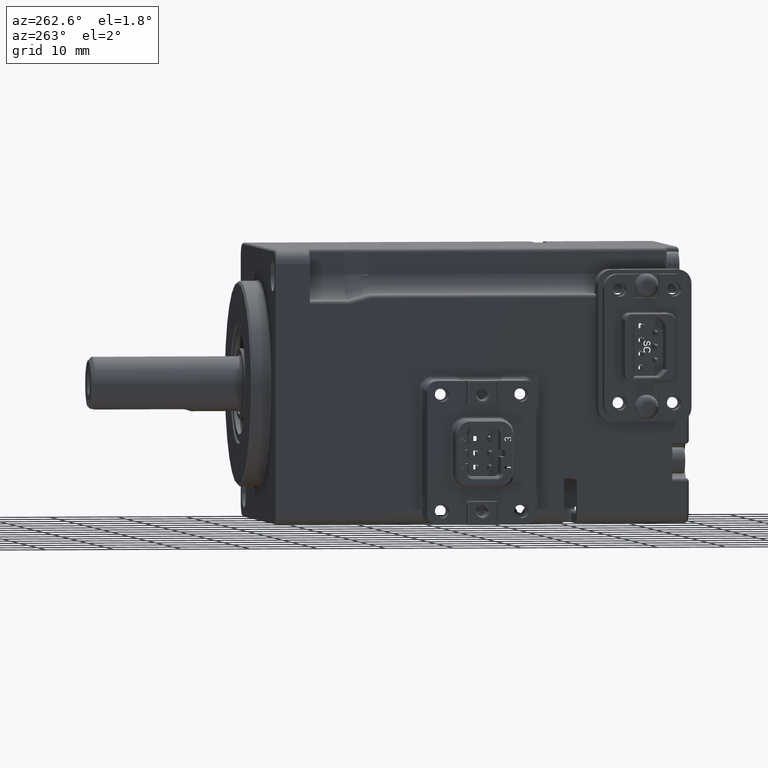
[diagram: clean part render]
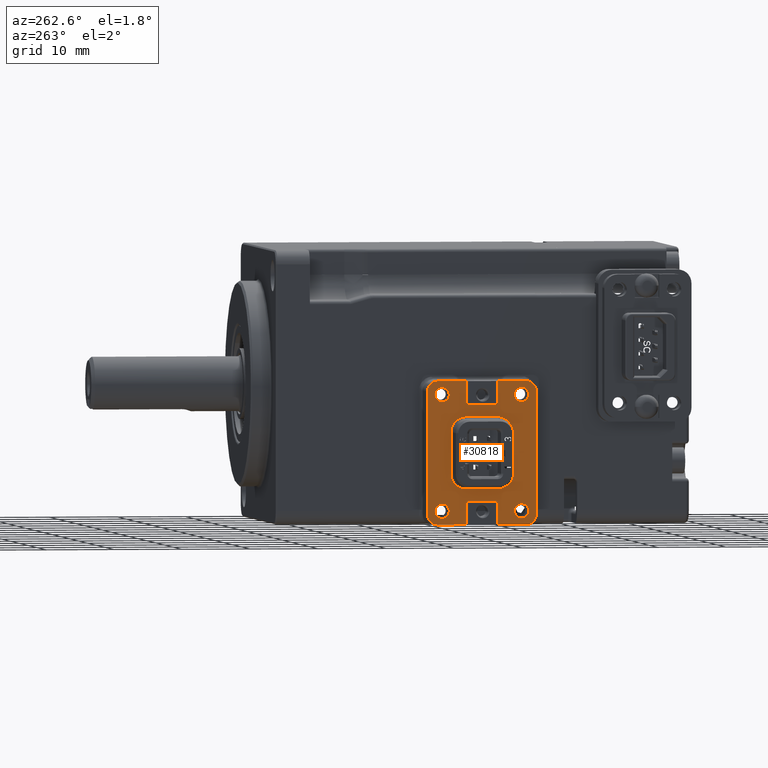
[diagram: same view with one face highlighted and labeled with its STEP entity id]
A machine part, auxiliary view. The second image highlights one B-rep face of the part: STEP entity #30818.
In plain terms, the highlighted planar face has unit normal (-1, -0, 0).
Its self-contained STEP definition (entity closure, byte-faithful):
#83 = CARTESIAN_POINT ( 'NONE',  ( -25.29999999999998650, 11.93342453578383378, -4.340476382030566960 ) ) ;
#85 = CARTESIAN_POINT ( 'NONE',  ( -25.29999999999998650, 6.849999999431412689, -16.49414379222918114 ) ) ;
#135 = CARTESIAN_POINT ( 'NONE',  ( -25.29999999999998295, 10.75000000042746962, -2.394143792229025181 ) ) ;
#201 = CARTESIAN_POINT ( 'NONE',  ( -25.29999999999998295, 4.250000000001012523, -12.42414379224866572 ) ) ;
#321 = CARTESIAN_POINT ( 'NONE',  ( -25.29999999999998295, 11.04999999996511661, -2.094139428596199615 ) ) ;
#526 = AXIS2_PLACEMENT_3D ( 'NONE', #5203, #13510, #31580 ) ;
#649 = DIRECTION ( 'NONE',  ( 1.186755645631133714E-16, -1.084028700137906438E-14, 1.000000000000000000 ) ) ;
#671 = EDGE_CURVE ( 'NONE', #10536, #20473, #4727, .T. ) ;
#735 = CARTESIAN_POINT ( 'NONE',  ( -25.29999999999998295, 2.300000000001125589, -0.4441437922292970630 ) ) ;
#777 = CIRCLE ( 'NONE', #25261, 1.050000000000118172 ) ;
#802 = CARTESIAN_POINT ( 'NONE',  ( -25.29999999999998650, 6.188414638325144601, -4.184329655675074200 ) ) ;
#881 = VERTEX_POINT ( 'NONE', #15636 ) ;
#924 = CIRCLE ( 'NONE', #18708, 1.500000000000096367 ) ;
#1008 = ORIENTED_EDGE ( 'NONE', *, *, #21073, .T. ) ;
#1032 = EDGE_CURVE ( 'NONE', #32018, #7398, #19358, .T. ) ;
#1054 = DIRECTION ( 'NONE',  ( 0.000000000000000000, -1.073876437509332480E-14, 1.000000000000000000 ) ) ;
#1122 = CARTESIAN_POINT ( 'NONE',  ( -25.29999999999998295, 5.452560541469893884, -14.44847140338645985 ) ) ;
#1217 = CARTESIAN_POINT ( 'NONE',  ( -25.29999999999998650, 10.75000000000077982, -16.79414379222984977 ) ) ;
#1324 = CARTESIAN_POINT ( 'NONE',  ( -25.29999999999997584, 5.943691420244775259, -4.243205090724321060 ) ) ;
#1456 = EDGE_CURVE ( 'NONE', #19972, #22734, #19940, .T. ) ;
#1464 = CARTESIAN_POINT ( 'NONE',  ( -25.29999999999998295, 0.7999999999996048050, -9.444143792228873124 ) ) ;
#1491 = CARTESIAN_POINT ( 'NONE',  ( -25.29999999999998650, 6.403852495596596306, -4.164143792229610952 ) ) ;
#1554 = EDGE_CURVE ( 'NONE', #14692, #8296, #24983, .T. ) ;
#2123 = AXIS2_PLACEMENT_3D ( 'NONE', #20956, #26065, #9883 ) ;
#2179 = VECTOR ( 'NONE', #9693, 1000.000000000000000 ) ;
#2220 = AXIS2_PLACEMENT_3D ( 'NONE', #25276, #14612, #1054 ) ;
#2334 = EDGE_CURVE ( 'NONE', #7067, #10536, #3752, .T. ) ;
#2353 = CARTESIAN_POINT ( 'NONE',  ( -25.29999999999998295, 6.849999998506953958, -2.394143792229066481 ) ) ;
#2402 = VERTEX_POINT ( 'NONE', #10048 ) ;
#2523 = CARTESIAN_POINT ( 'NONE',  ( -25.29999999999998650, 11.86256381169717145, -14.57590385754874873 ) ) ;
#2698 = CARTESIAN_POINT ( 'NONE',  ( -25.29999999999997939, 12.14743945853135365, -4.439816181071113199 ) ) ;
#2710 = CARTESIAN_POINT ( 'NONE',  ( -25.29999999999997939, 4.250000000001078249, -12.57029129663378519 ) ) ;
#2863 = ORIENTED_EDGE ( 'NONE', *, *, #23491, .T. ) ;
#2867 = AXIS2_PLACEMENT_3D ( 'NONE', #1217, #11686, #14404 ) ;
#2887 = CARTESIAN_POINT ( 'NONE',  ( -25.29999999999999005, 4.367330331279489997, -13.15115874384163597 ) ) ;
#2996 = LINE ( 'NONE', #22305, #18928 ) ;
#3158 = ORIENTED_EDGE ( 'NONE', *, *, #7888, .T. ) ;
#3203 = CARTESIAN_POINT ( 'NONE',  ( -25.29999999999998295, 6.850000000000470379, -2.094143792227725953 ) ) ;
#3225 = EDGE_CURVE ( 'NONE', #30821, #17748, #7591, .T. ) ;
#3245 = LINE ( 'NONE', #16617, #14510 ) ;
#3455 = ORIENTED_EDGE ( 'NONE', *, *, #21961, .T. ) ;
#3556 = DIRECTION ( 'NONE',  ( -1.000000000000000000, -6.596682886007179009E-17, 1.186755645631126565E-16 ) ) ;
#3590 = CARTESIAN_POINT ( 'NONE',  ( -25.29999999999998295, 4.465646589456732762, -5.490165061242270106 ) ) ;
#3752 = LINE ( 'NONE', #23070, #2179 ) ;
#3753 = CIRCLE ( 'NONE', #25521, 1.050000000000118172 ) ;
#3818 = EDGE_CURVE ( 'NONE', #24884, #20267, #28186, .T. ) ;
#3921 = CARTESIAN_POINT ( 'NONE',  ( -25.29999999999997229, 4.699403858450686755, -13.82613381615012571 ) ) ;
#3950 = CARTESIAN_POINT ( 'NONE',  ( -25.29999999999998295, 4.303828969189040343, -5.889286095194595561 ) ) ;
#4383 = AXIS2_PLACEMENT_3D ( 'NONE', #24556, #21892, #26828 ) ;
#4411 = VERTEX_POINT ( 'NONE', #33138 ) ;
#4652 = CARTESIAN_POINT ( 'NONE',  ( -25.29999999999998295, 13.15819321537257203, -13.34395715629145229 ) ) ;
#4653 = CARTESIAN_POINT ( 'NONE',  ( -25.29999999999998650, 6.550000000000814282, -16.79414379222988885 ) ) ;
#4664 = DIRECTION ( 'NONE',  ( -1.186755645631133714E-16, 1.084028700137906438E-14, -1.000000000000000000 ) ) ;
#4727 = B_SPLINE_CURVE_WITH_KNOTS ( 'NONE', 3,
 ( #25359, #1491, #802, #1324, #11621, #30371, #11441, #27291, #14019, #19416, #30050, #9336, #30544, #3590, #6569, #32412, #17136, #3950, #17314, #27987 ),
 .UNSPECIFIED., .F., .F.,
 ( 4, 1, 1, 1, 2, 2, 2, 1, 1, 1, 2, 2, 4 ),
 ( 0.000000000000000000, 0.1249999999999978906, 0.1874999999999968359, 0.2187499999999967804, 0.2343749999999968636, 0.2499999999999969469, 0.4999999999999964473, 0.6249999999999964473, 0.6874999999999968914, 0.7187499999999972244, 0.7343749999999971134, 0.7499999999999971134, 1.000000000000000000 ),
 .UNSPECIFIED. ) ;
#4752 = ORIENTED_EDGE ( 'NONE', *, *, #4930, .T. ) ;
#4930 = EDGE_CURVE ( 'NONE', #24751, #25329, #924, .T. ) ;
#4933 = EDGE_LOOP ( 'NONE', ( #26170, #22105, #24589, #14616, #33288, #4752, #5019, #25203, #7331, #22729, #12820, #1008, #14575, #31294, #22715, #3455, #20143, #2863, #15154, #19587 ) ) ;
#5019 = ORIENTED_EDGE ( 'NONE', *, *, #6654, .T. ) ;
#5203 = CARTESIAN_POINT ( 'NONE',  ( -25.29999999999998650, 14.65000000000017621, -17.94414379222774514 ) ) ;
#5295 = VECTOR ( 'NONE', #22844, 1000.000000000000000 ) ;
#5336 = CARTESIAN_POINT ( 'NONE',  ( -25.29999999999999005, 13.21437622997405548, -5.685752232074165136 ) ) ;
#5396 = AXIS2_PLACEMENT_3D ( 'NONE', #9157, #30358, #6549 ) ;
#5468 = CARTESIAN_POINT ( 'NONE',  ( -25.29999999999998650, 0.7999999999997019495, -18.44414379222843081 ) ) ;
#5642 = EDGE_CURVE ( 'NONE', #5688, #32018, #15523, .T. ) ;
#5688 = VERTEX_POINT ( 'NONE', #10523 ) ;
#5737 = EDGE_CURVE ( 'NONE', #20310, #24179, #7156, .T. ) ;
#5841 = CARTESIAN_POINT ( 'NONE',  ( -25.29999999999998295, 14.64999999999999325, -0.9441437922297000185 ) ) ;
#5853 = VERTEX_POINT ( 'NONE', #33048 ) ;
#5860 = CARTESIAN_POINT ( 'NONE',  ( -25.29999999999998295, 8.800000000000624212, -9.444143792228786083 ) ) ;
#5947 = CARTESIAN_POINT ( 'NONE',  ( -25.29999999999998650, 8.800000000000739675, -19.94414379222996558 ) ) ;
#6018 = DIRECTION ( 'NONE',  ( 0.000000000000000000, -1.073876437509332480E-14, 1.000000000000000000 ) ) ;
#6191 = CARTESIAN_POINT ( 'NONE',  ( -25.29999999999998650, 2.950000000001268052, -18.99414379222799099 ) ) ;
#6528 = CARTESIAN_POINT ( 'NONE',  ( -25.29999999999998295, 11.05000000000051408, -9.444143792228761214 ) ) ;
#6536 = CARTESIAN_POINT ( 'NONE',  ( -25.29999999999997939, 5.035779675693608404, -14.16266717536240805 ) ) ;
#6549 = DIRECTION ( 'NONE',  ( 0.000000000000000000, 1.040834085586018308E-14, -1.000000000000000000 ) ) ;
#6569 = CARTESIAN_POINT ( 'NONE',  ( -25.29999999999997939, 4.441806784628724358, -5.544330428150815671 ) ) ;
#6588 = CARTESIAN_POINT ( 'NONE',  ( -25.29999999999998295, 8.800000000000547828, -2.394143792229046053 ) ) ;
#6654 = EDGE_CURVE ( 'NONE', #25329, #33550, #10804, .T. ) ;
#6689 = LINE ( 'NONE', #32706, #5295 ) ;
#6692 = ORIENTED_EDGE ( 'NONE', *, *, #14848, .T. ) ;
#6726 = CARTESIAN_POINT ( 'NONE',  ( -25.29999999999998650, 5.630186635938875028, -14.53233700760086933 ) ) ;
#6782 = ORIENTED_EDGE ( 'NONE', *, *, #2334, .T. ) ;
#6786 = EDGE_CURVE ( 'NONE', #13970, #22191, #26224, .T. ) ;
#6889 = EDGE_CURVE ( 'NONE', #33550, #25353, #3245, .T. ) ;
#6902 = CARTESIAN_POINT ( 'NONE',  ( -25.29999999999998650, 4.404193296622990417, -13.25232624754328192 ) ) ;
#7012 = AXIS2_PLACEMENT_3D ( 'NONE', #31582, #15592, #7841 ) ;
#7067 = VERTEX_POINT ( 'NONE', #25882 ) ;
#7156 = CIRCLE ( 'NONE', #27171, 1.050000000000118172 ) ;
#7171 = CIRCLE ( 'NONE', #2123, 1.500000000000096367 ) ;
#7331 = ORIENTED_EDGE ( 'NONE', *, *, #23421, .T. ) ;
#7398 = VERTEX_POINT ( 'NONE', #5468 ) ;
#7591 = CIRCLE ( 'NONE', #7012, 0.3000000000000710432 ) ;
#7635 = ORIENTED_EDGE ( 'NONE', *, *, #30829, .T. ) ;
#7710 = LINE ( 'NONE', #5947, #7819 ) ;
#7796 = CARTESIAN_POINT ( 'NONE',  ( -25.29999999999998295, 13.07181531732903856, -5.322559933039983981 ) ) ;
#7819 = VECTOR ( 'NONE', #16158, 1000.000000000000000 ) ;
#7841 = DIRECTION ( 'NONE',  ( 0.000000000000000000, 1.156482317317597556E-14, -1.000000000000000000 ) ) ;
#7888 = EDGE_CURVE ( 'NONE', #22734, #31991, #8959, .T. ) ;
#8296 = VERTEX_POINT ( 'NONE', #14448 ) ;
#8344 = ORIENTED_EDGE ( 'NONE', *, *, #671, .T. ) ;
#8461 = FACE_BOUND ( 'NONE', #8884, .T. ) ;
#8796 = FACE_BOUND ( 'NONE', #21367, .T. ) ;
#8857 = EDGE_CURVE ( 'NONE', #7398, #24751, #17285, .T. ) ;
#8884 = EDGE_LOOP ( 'NONE', ( #13043, #7635 ) ) ;
#8959 = B_SPLINE_CURVE_WITH_KNOTS ( 'NONE', 3,
 ( #20940, #10226, #15721, #26388, #23770, #12826, #2523, #13135, #18521, #28659, #12472, #31545, #20775, #9867, #4652, #26547, #29147, #12980, #26234, #15553 ),
 .UNSPECIFIED., .F., .F.,
 ( 4, 1, 1, 1, 2, 2, 2, 1, 1, 1, 2, 2, 4 ),
 ( 0.000000000000000000, 0.1249999999999942824, 0.1874999999999905353, 0.2187499999999896194, 0.2343749999999888978, 0.2499999999999881761, 0.4999999999999902300, 0.6249999999999916733, 0.6874999999999925615, 0.7187499999999926725, 0.7343749999999926725, 0.7499999999999927836, 1.000000000000000000 ),
 .UNSPECIFIED. ) ;
#9098 = ORIENTED_EDGE ( 'NONE', *, *, #28265, .T. ) ;
#9157 = CARTESIAN_POINT ( 'NONE',  ( -25.29999999999998650, 15.30000000000012506, -18.44414379222827449 ) ) ;
#9181 = CARTESIAN_POINT ( 'NONE',  ( -25.29999999999998295, 2.950000000001061107, 0.1058562077702897841 ) ) ;
#9306 = CARTESIAN_POINT ( 'NONE',  ( -25.29999999999998295, 5.975142302985736009, -14.67031482304014567 ) ) ;
#9336 = CARTESIAN_POINT ( 'NONE',  ( -25.29999999999998295, 4.663322340101180963, -5.131483392811251321 ) ) ;
#9446 = CARTESIAN_POINT ( 'NONE',  ( -25.29999999999998650, 11.04999999997420623, -16.79414661272204157 ) ) ;
#9495 = CARTESIAN_POINT ( 'NONE',  ( -25.29999999999998650, 6.549999999991266364, -14.72414379222835912 ) ) ;
#9693 = DIRECTION ( 'NONE',  ( 6.596682886007047122E-17, -1.000000000000000000, -1.084028700137906438E-14 ) ) ;
#9732 = LINE ( 'NONE', #25391, #28832 ) ;
#9850 = VERTEX_POINT ( 'NONE', #10656 ) ;
#9867 = CARTESIAN_POINT ( 'NONE',  ( -25.29999999999999005, 13.13435341054459826, -13.39812252320055386 ) ) ;
#9883 = DIRECTION ( 'NONE',  ( 0.000000000000000000, 1.156482317317797138E-14, -1.000000000000000000 ) ) ;
#9893 = CARTESIAN_POINT ( 'NONE',  ( -25.29999999999998295, 14.64999999999998082, 0.1058562077704181537 ) ) ;
#9939 = ORIENTED_EDGE ( 'NONE', *, *, #1456, .T. ) ;
#10048 = CARTESIAN_POINT ( 'NONE',  ( -25.29999999999998295, 2.950000000001084199, -1.994143792229946088 ) ) ;
#10066 = DIRECTION ( 'NONE',  ( 1.000000000000000000, 6.596682886007179009E-17, -1.186755645631127551E-16 ) ) ;
#10221 = CARTESIAN_POINT ( 'NONE',  ( -25.29999999999998295, 13.27093870150432231, -5.857835212472094710 ) ) ;
#10226 = CARTESIAN_POINT ( 'NONE',  ( -25.29999999999997939, 11.19614750440455886, -14.72414379222796121 ) ) ;
#10490 = B_SPLINE_CURVE_WITH_KNOTS ( 'NONE', 3,
 ( #23595, #34165, #34343, #10221, #10549, #5336, #20936, #12644, #7796, #20771, #21114, #31382, #2698, #13306, #23946, #83, #10709, #21282, #31876, #18167 ),
 .UNSPECIFIED., .F., .F.,
 ( 4, 1, 1, 1, 2, 2, 2, 1, 1, 1, 2, 2, 4 ),
 ( 0.000000000000000000, 0.1249999999999990286, 0.1874999999999986677, 0.2187499999999985290, 0.2343749999999980571, 0.2499999999999976130, 0.4999999999999895639, 0.6249999999999852340, 0.6874999999999839018, 0.7187499999999833467, 0.7343749999999835687, 0.7499999999999837907, 1.000000000000000000 ),
 .UNSPECIFIED. ) ;
#10523 = CARTESIAN_POINT ( 'NONE',  ( -25.29999999999998650, 6.550000000000848921, -19.94414379222999401 ) ) ;
#10536 = VERTEX_POINT ( 'NONE', #10606 ) ;
#10549 = CARTESIAN_POINT ( 'NONE',  ( -25.29999999999998295, 13.23266966872176020, -5.737128840615937975 ) ) ;
#10553 = EDGE_LOOP ( 'NONE', ( #34423, #15075 ) ) ;
#10606 = CARTESIAN_POINT ( 'NONE',  ( -25.29999999999998295, 6.549999999981754861, -4.164143792229229923 ) ) ;
#10656 = CARTESIAN_POINT ( 'NONE',  ( -25.29999999999998295, 11.04999999994807780, 1.055856207772419841 ) ) ;
#10709 = CARTESIAN_POINT ( 'NONE',  ( -25.29999999999997939, 11.91360284043285311, -4.332359320941651326 ) ) ;
#10804 = LINE ( 'NONE', #24564, #21709 ) ;
#10974 = CIRCLE ( 'NONE', #27115, 1.050000000000118172 ) ;
#11098 = DIRECTION ( 'NONE',  ( 1.000000000000000000, 6.596682886007179009E-17, -1.186755645631127551E-16 ) ) ;
#11235 = AXIS2_PLACEMENT_3D ( 'NONE', #5860, #3556, #27068 ) ;
#11264 = CARTESIAN_POINT ( 'NONE',  ( -25.29999999999998295, 10.75000000000061995, -2.094143792227684209 ) ) ;
#11389 = CARTESIAN_POINT ( 'NONE',  ( -25.29999999999998650, 10.75000000000077627, -16.49414379222850613 ) ) ;
#11409 = CARTESIAN_POINT ( 'NONE',  ( -25.29999999999998650, 16.80000000000098126, -18.44414379222825673 ) ) ;
#11410 = FACE_BOUND ( 'NONE', #31012, .T. ) ;
#11441 = CARTESIAN_POINT ( 'NONE',  ( -25.29999999999998295, 5.737436188304059215, -4.312383726907190074 ) ) ;
#11487 = CARTESIAN_POINT ( 'NONE',  ( -25.29999999999998295, 14.65000000000000568, -1.994143792229817747 ) ) ;
#11592 = VECTOR ( 'NONE', #27772, 1000.000000000000000 ) ;
#11621 = CARTESIAN_POINT ( 'NONE',  ( -25.29999999999998295, 5.822985048388671814, -4.281474123506334273 ) ) ;
#11624 = EDGE_CURVE ( 'NONE', #31991, #15068, #23188, .T. ) ;
#11686 = DIRECTION ( 'NONE',  ( 1.000000000000000000, 6.596682886007179009E-17, -1.186755645631127551E-16 ) ) ;
#11877 = ORIENTED_EDGE ( 'NONE', *, *, #23308, .T. ) ;
#11878 = VECTOR ( 'NONE', #649, 1000.000000000000000 ) ;
#11931 = B_SPLINE_CURVE_WITH_KNOTS ( 'NONE', 3,
 ( #26554, #2710, #16064, #26752, #2887, #21987, #32918, #6902, #19901, #3921, #6536, #11934, #1122, #30514, #6726, #14671, #27601, #9306, #17286, #9495 ),
 .UNSPECIFIED., .F., .F.,
 ( 4, 1, 1, 1, 2, 2, 2, 1, 1, 1, 2, 2, 4 ),
 ( 0.000000000000000000, 0.1249999999999934774, 0.1874999999999902300, 0.2187499999999885925, 0.2343749999999877598, 0.2499999999999869549, 0.4999999999999890088, 0.6249999999999900080, 0.6874999999999905631, 0.7187499999999911182, 0.7343749999999911182, 0.7499999999999910072, 1.000000000000000000 ),
 .UNSPECIFIED. ) ;
#11934 = CARTESIAN_POINT ( 'NONE',  ( -25.29999999999998295, 5.217339600595018112, -14.31082145212874046 ) ) ;
#12108 = EDGE_CURVE ( 'NONE', #14473, #2402, #777, .T. ) ;
#12472 = CARTESIAN_POINT ( 'NONE',  ( -25.29999999999998650, 12.78852338313376436, -13.93836411653661678 ) ) ;
#12559 = VERTEX_POINT ( 'NONE', #24332 ) ;
#12604 = EDGE_CURVE ( 'NONE', #29328, #24884, #22748, .T. ) ;
#12643 = VERTEX_POINT ( 'NONE', #11409 ) ;
#12644 = CARTESIAN_POINT ( 'NONE',  ( -25.29999999999998295, 13.19580670337825978, -5.635961336914292907 ) ) ;
#12732 = ORIENTED_EDGE ( 'NONE', *, *, #12108, .T. ) ;
#12753 = ORIENTED_EDGE ( 'NONE', *, *, #16709, .T. ) ;
#12820 = ORIENTED_EDGE ( 'NONE', *, *, #3818, .T. ) ;
#12826 = CARTESIAN_POINT ( 'NONE',  ( -25.29999999999999005, 11.82839156015428195, -14.58852002220229771 ) ) ;
#12980 = CARTESIAN_POINT ( 'NONE',  ( -25.29999999999997939, 13.29617103081220719, -12.99900148924370669 ) ) ;
#13043 = ORIENTED_EDGE ( 'NONE', *, *, #16174, .T. ) ;
#13135 = CARTESIAN_POINT ( 'NONE',  ( -25.29999999999999005, 11.87818245531418881, -14.56995049560654998 ) ) ;
#13141 = CARTESIAN_POINT ( 'NONE',  ( -25.29999999999998650, 14.65000000000018865, -18.99414379222785954 ) ) ;
#13306 = CARTESIAN_POINT ( 'NONE',  ( -25.29999999999998650, 12.02397873097144299, -4.379790381684667722 ) ) ;
#13510 = DIRECTION ( 'NONE',  ( 1.000000000000000000, 6.596682886007179009E-17, -1.186755645631127551E-16 ) ) ;
#13805 = CARTESIAN_POINT ( 'NONE',  ( -25.29999999999998650, 2.950000000001256506, -17.94414379222787304 ) ) ;
#13960 = DIRECTION ( 'NONE',  ( 1.000000000000000000, 6.596682886007179009E-17, -1.186755645631127551E-16 ) ) ;
#13970 = VERTEX_POINT ( 'NONE', #9446 ) ;
#14019 = CARTESIAN_POINT ( 'NONE',  ( -25.29999999999998295, 5.408416140813563366, -4.442328474896541479 ) ) ;
#14355 = CARTESIAN_POINT ( 'NONE',  ( -25.29999999999998650, 8.800000000000682832, -14.72414379222798608 ) ) ;
#14404 = DIRECTION ( 'NONE',  ( 0.000000000000000000, 1.156482317317597556E-14, -1.000000000000000000 ) ) ;
#14448 = CARTESIAN_POINT ( 'NONE',  ( -25.29999999999998650, 14.65000000000016378, -16.89414379222762719 ) ) ;
#14473 = VERTEX_POINT ( 'NONE', #9181 ) ;
#14510 = VECTOR ( 'NONE', #24669, 1000.000000000000000 ) ;
#14568 = CARTESIAN_POINT ( 'NONE',  ( -25.29999999999998295, 6.550000000053876725, 1.055856207772371436 ) ) ;
#14575 = ORIENTED_EDGE ( 'NONE', *, *, #15716, .T. ) ;
#14612 = DIRECTION ( 'NONE',  ( 1.000000000000000000, 6.596682886007179009E-17, -1.186755645631127551E-16 ) ) ;
#14616 = ORIENTED_EDGE ( 'NONE', *, *, #1032, .T. ) ;
#14671 = CARTESIAN_POINT ( 'NONE',  ( -25.29999999999998295, 5.666575464217417313, -14.54781120242700432 ) ) ;
#14692 = VERTEX_POINT ( 'NONE', #13141 ) ;
#14842 = CARTESIAN_POINT ( 'NONE',  ( -25.29999999999998295, 2.300000000001109157, 1.055856207772324584 ) ) ;
#14848 = EDGE_CURVE ( 'NONE', #18012, #19972, #11931, .T. ) ;
#14924 = CARTESIAN_POINT ( 'NONE',  ( -25.29999999999998295, 0.8000000000002692735, -0.4441437922293126617 ) ) ;
#15068 = VERTEX_POINT ( 'NONE', #22970 ) ;
#15073 = DIRECTION ( 'NONE',  ( -6.596682886007047122E-17, 1.000000000000000000, 1.084028700137906438E-14 ) ) ;
#15075 = ORIENTED_EDGE ( 'NONE', *, *, #23126, .T. ) ;
#15133 = CARTESIAN_POINT ( 'NONE',  ( -25.29999999999998650, 2.300000000001336531, -19.94414379223004019 ) ) ;
#15154 = ORIENTED_EDGE ( 'NONE', *, *, #6786, .T. ) ;
#15299 = EDGE_CURVE ( 'NONE', #22020, #4411, #7171, .T. ) ;
#15332 = EDGE_CURVE ( 'NONE', #4411, #12643, #28512, .T. ) ;
#15501 = CIRCLE ( 'NONE', #526, 1.050000000000116840 ) ;
#15523 = LINE ( 'NONE', #26209, #28816 ) ;
#15553 = CARTESIAN_POINT ( 'NONE',  ( -25.29999999999998650, 13.35000000000011156, -12.42414379223904142 ) ) ;
#15592 = DIRECTION ( 'NONE',  ( 1.000000000000000000, 6.596682886007179009E-17, -1.186755645631127551E-16 ) ) ;
#15636 = CARTESIAN_POINT ( 'NONE',  ( -25.29999999999998650, 2.950000000001244960, -16.89414379222775509 ) ) ;
#15693 = DIRECTION ( 'NONE',  ( 6.596682886007047122E-17, -1.000000000000000000, -1.084028700137906438E-14 ) ) ;
#15716 = EDGE_CURVE ( 'NONE', #9850, #22020, #9732, .T. ) ;
#15721 = CARTESIAN_POINT ( 'NONE',  ( -25.29999999999998295, 11.41158536167594484, -14.70395792878227326 ) ) ;
#15747 = DIRECTION ( 'NONE',  ( 0.000000000000000000, -1.073876437509331217E-14, 1.000000000000000000 ) ) ;
#16064 = CARTESIAN_POINT ( 'NONE',  ( -25.29999999999999005, 4.270185863446827490, -12.78572915390509301 ) ) ;
#16158 = DIRECTION ( 'NONE',  ( 6.596682886007047122E-17, -1.000000000000000000, -1.084028700137906438E-14 ) ) ;
#16174 = EDGE_CURVE ( 'NONE', #881, #29399, #26149, .T. ) ;
#16298 = DIRECTION ( 'NONE',  ( 6.596682886007047122E-17, -1.000000000000000000, -1.084028700137906438E-14 ) ) ;
#16398 = EDGE_CURVE ( 'NONE', #20473, #18012, #23851, .T. ) ;
#16518 = ORIENTED_EDGE ( 'NONE', *, *, #16398, .T. ) ;
#16617 = CARTESIAN_POINT ( 'NONE',  ( -25.29999999999998295, 6.550000000000735234, -9.444143792228810952 ) ) ;
#16620 = CARTESIAN_POINT ( 'NONE',  ( -25.29999999999998295, 14.64999999999999325, -0.9441437922297000185 ) ) ;
#16709 = EDGE_CURVE ( 'NONE', #8296, #14692, #15501, .T. ) ;
#17083 = AXIS2_PLACEMENT_3D ( 'NONE', #3203, #32215, #27421 ) ;
#17136 = CARTESIAN_POINT ( 'NONE',  ( -25.29999999999998650, 4.418215528713616003, -5.600540951779793275 ) ) ;
#17162 = AXIS2_PLACEMENT_3D ( 'NONE', #22921, #10066, #23268 ) ;
#17285 = LINE ( 'NONE', #1464, #11878 ) ;
#17286 = CARTESIAN_POINT ( 'NONE',  ( -25.29999999999998295, 6.257348246980196649, -14.72414379222801450 ) ) ;
#17295 = LINE ( 'NONE', #32753, #27762 ) ;
#17314 = CARTESIAN_POINT ( 'NONE',  ( -25.29999999999997584, 4.250000000001007194, -6.171492039185928036 ) ) ;
#17380 = EDGE_CURVE ( 'NONE', #17748, #5688, #2996, .T. ) ;
#17748 = VERTEX_POINT ( 'NONE', #4653 ) ;
#18012 = VERTEX_POINT ( 'NONE', #201 ) ;
#18167 = CARTESIAN_POINT ( 'NONE',  ( -25.29999999999998295, 11.05000000000998384, -4.164143792229213048 ) ) ;
#18521 = CARTESIAN_POINT ( 'NONE',  ( -25.29999999999997584, 12.19158385918768062, -14.44595910955804108 ) ) ;
#18547 = ORIENTED_EDGE ( 'NONE', *, *, #11624, .T. ) ;
#18708 = AXIS2_PLACEMENT_3D ( 'NONE', #735, #18839, #24418 ) ;
#18839 = DIRECTION ( 'NONE',  ( -1.000000000000000000, -6.596682886007179009E-17, 1.186755645631127551E-16 ) ) ;
#18928 = VECTOR ( 'NONE', #32173, 1000.000000000000000 ) ;
#19358 = CIRCLE ( 'NONE', #4383, 1.500000000000095035 ) ;
#19416 = CARTESIAN_POINT ( 'NONE',  ( -25.29999999999998295, 5.148009976079922723, -4.613547650673947231 ) ) ;
#19452 = EDGE_CURVE ( 'NONE', #22191, #30821, #17295, .T. ) ;
#19587 = ORIENTED_EDGE ( 'NONE', *, *, #19452, .T. ) ;
#19901 = CARTESIAN_POINT ( 'NONE',  ( -25.29999999999997584, 4.528184682672213413, -13.56572765141758552 ) ) ;
#19940 = LINE ( 'NONE', #14355, #20487 ) ;
#19972 = VERTEX_POINT ( 'NONE', #27360 ) ;
#20143 = ORIENTED_EDGE ( 'NONE', *, *, #24613, .T. ) ;
#20267 = VERTEX_POINT ( 'NONE', #321 ) ;
#20310 = VERTEX_POINT ( 'NONE', #9893 ) ;
#20473 = VERTEX_POINT ( 'NONE', #32241 ) ;
#20487 = VECTOR ( 'NONE', #29873, 1000.000000000000000 ) ;
#20699 = AXIS2_PLACEMENT_3D ( 'NONE', #13805, #21798, #6018 ) ;
#20771 = CARTESIAN_POINT ( 'NONE',  ( -25.29999999999999005, 12.90059614155056700, -5.062153768307446455 ) ) ;
#20775 = CARTESIAN_POINT ( 'NONE',  ( -25.29999999999998295, 13.07432761115809505, -13.52158325076051426 ) ) ;
#20936 = CARTESIAN_POINT ( 'NONE',  ( -25.29999999999997229, 13.20176006532045321, -5.651579980531268532 ) ) ;
#20940 = CARTESIAN_POINT ( 'NONE',  ( -25.29999999999998650, 11.05000000001949623, -14.72414379222834313 ) ) ;
#20956 = CARTESIAN_POINT ( 'NONE',  ( -25.29999999999998295, 15.29999999999992966, -0.4441437922291547880 ) ) ;
#21073 = EDGE_CURVE ( 'NONE', #20267, #9850, #6689, .T. ) ;
#21114 = CARTESIAN_POINT ( 'NONE',  ( -25.29999999999998295, 12.56422032430763913, -4.725620409095168561 ) ) ;
#21221 = VECTOR ( 'NONE', #33420, 1000.000000000000000 ) ;
#21282 = CARTESIAN_POINT ( 'NONE',  ( -25.29999999999998650, 11.62485769701551774, -4.217972761417426497 ) ) ;
#21367 = EDGE_LOOP ( 'NONE', ( #12753, #24457 ) ) ;
#21709 = VECTOR ( 'NONE', #29079, 1000.000000000000000 ) ;
#21798 = DIRECTION ( 'NONE',  ( 1.000000000000000000, 6.596682886007179009E-17, -1.186755645631127551E-16 ) ) ;
#21816 = DIRECTION ( 'NONE',  ( 1.000000000000000000, 6.596682886007179009E-17, -1.186755645631127551E-16 ) ) ;
#21835 = DIRECTION ( 'NONE',  ( 0.000000000000000000, -9.912705577009209903E-15, 1.000000000000000000 ) ) ;
#21892 = DIRECTION ( 'NONE',  ( -1.000000000000000000, -6.596682886007179009E-17, 1.186755645631127551E-16 ) ) ;
#21961 = EDGE_CURVE ( 'NONE', #12643, #5853, #30902, .T. ) ;
#21974 = FACE_BOUND ( 'NONE', #10553, .T. ) ;
#21987 = CARTESIAN_POINT ( 'NONE',  ( -25.29999999999997939, 4.385623770027199164, -13.20253535238340881 ) ) ;
#22020 = VERTEX_POINT ( 'NONE', #33627 ) ;
#22105 = ORIENTED_EDGE ( 'NONE', *, *, #17380, .T. ) ;
#22191 = VERTEX_POINT ( 'NONE', #11389 ) ;
#22305 = CARTESIAN_POINT ( 'NONE',  ( -25.29999999999998295, 6.550000000000735234, -9.444143792228810952 ) ) ;
#22355 = DIRECTION ( 'NONE',  ( 1.000000000000000000, 6.596682886007179009E-17, -1.186755645631127551E-16 ) ) ;
#22715 = ORIENTED_EDGE ( 'NONE', *, *, #15332, .T. ) ;
#22729 = ORIENTED_EDGE ( 'NONE', *, *, #12604, .T. ) ;
#22734 = VERTEX_POINT ( 'NONE', #26771 ) ;
#22748 = LINE ( 'NONE', #6588, #29172 ) ;
#22844 = DIRECTION ( 'NONE',  ( 1.186755645631133714E-16, -1.084028700137906438E-14, 1.000000000000000000 ) ) ;
#22921 = CARTESIAN_POINT ( 'NONE',  ( -25.29999999999998650, 14.65000000000017621, -17.94414379222774514 ) ) ;
#22970 = CARTESIAN_POINT ( 'NONE',  ( -25.29999999999998295, 13.35000000000023590, -6.464143792208905559 ) ) ;
#23054 = CARTESIAN_POINT ( 'NONE',  ( -25.29999999999998295, 6.550000000000527400, -2.094143792227729506 ) ) ;
#23070 = CARTESIAN_POINT ( 'NONE',  ( -25.29999999999998295, 8.800000000000567368, -4.164143792229586083 ) ) ;
#23126 = EDGE_CURVE ( 'NONE', #24179, #20310, #10974, .T. ) ;
#23188 = LINE ( 'NONE', #33230, #21221 ) ;
#23268 = DIRECTION ( 'NONE',  ( 0.000000000000000000, -9.912705577009222525E-15, 1.000000000000000000 ) ) ;
#23308 = EDGE_CURVE ( 'NONE', #15068, #7067, #10490, .T. ) ;
#23421 = EDGE_CURVE ( 'NONE', #25353, #29328, #24351, .T. ) ;
#23453 = CIRCLE ( 'NONE', #20699, 1.050000000000116840 ) ;
#23491 = EDGE_CURVE ( 'NONE', #12559, #13970, #30682, .T. ) ;
#23595 = CARTESIAN_POINT ( 'NONE',  ( -25.29999999999998295, 13.35000000000023590, -6.464143792208905559 ) ) ;
#23627 = CARTESIAN_POINT ( 'NONE',  ( -25.29999999999998295, 2.950000000001072209, -0.9441437922298283603 ) ) ;
#23770 = CARTESIAN_POINT ( 'NONE',  ( -25.29999999999998650, 11.77701495161250733, -14.60681346094994559 ) ) ;
#23851 = LINE ( 'NONE', #32298, #27764 ) ;
#23946 = CARTESIAN_POINT ( 'NONE',  ( -25.29999999999998295, 11.96981336406237340, -4.355950576856710832 ) ) ;
#24179 = VERTEX_POINT ( 'NONE', #11487 ) ;
#24190 = DIRECTION ( 'NONE',  ( -1.186755645631133714E-16, 1.084028700137906438E-14, -1.000000000000000000 ) ) ;
#24332 = CARTESIAN_POINT ( 'NONE',  ( -25.29999999999998650, 11.05000000000062954, -19.94414379222994427 ) ) ;
#24351 = CIRCLE ( 'NONE', #17083, 0.3000000000000701550 ) ;
#24418 = DIRECTION ( 'NONE',  ( 0.000000000000000000, 1.069746143518962305E-14, -1.000000000000000000 ) ) ;
#24457 = ORIENTED_EDGE ( 'NONE', *, *, #1554, .T. ) ;
#24556 = CARTESIAN_POINT ( 'NONE',  ( -25.29999999999998650, 2.300000000001320100, -18.44414379222841660 ) ) ;
#24564 = CARTESIAN_POINT ( 'NONE',  ( -25.29999999999998295, 8.800000000000510525, 1.055856207772395639 ) ) ;
#24589 = ORIENTED_EDGE ( 'NONE', *, *, #5642, .T. ) ;
#24612 = DIRECTION ( 'NONE',  ( 0.000000000000000000, -1.156482317317741287E-14, 1.000000000000000000 ) ) ;
#24613 = EDGE_CURVE ( 'NONE', #5853, #12559, #7710, .T. ) ;
#24636 = FACE_BOUND ( 'NONE', #29372, .T. ) ;
#24669 = DIRECTION ( 'NONE',  ( -1.186755645631133714E-16, 1.084028700137906438E-14, -1.000000000000000000 ) ) ;
#24751 = VERTEX_POINT ( 'NONE', #14924 ) ;
#24884 = VERTEX_POINT ( 'NONE', #135 ) ;
#24983 = CIRCLE ( 'NONE', #17162, 1.050000000000116840 ) ;
#25203 = ORIENTED_EDGE ( 'NONE', *, *, #6889, .T. ) ;
#25261 = AXIS2_PLACEMENT_3D ( 'NONE', #28113, #22355, #32562 ) ;
#25276 = CARTESIAN_POINT ( 'NONE',  ( -25.29999999999998650, 2.950000000001256506, -17.94414379222787304 ) ) ;
#25329 = VERTEX_POINT ( 'NONE', #14842 ) ;
#25353 = VERTEX_POINT ( 'NONE', #23054 ) ;
#25359 = CARTESIAN_POINT ( 'NONE',  ( -25.29999999999998295, 6.549999999981754861, -4.164143792229229923 ) ) ;
#25391 = CARTESIAN_POINT ( 'NONE',  ( -25.29999999999998295, 8.800000000000510525, 1.055856207772395639 ) ) ;
#25521 = AXIS2_PLACEMENT_3D ( 'NONE', #23627, #34191, #15747 ) ;
#25882 = CARTESIAN_POINT ( 'NONE',  ( -25.29999999999998295, 11.05000000000998384, -4.164143792229213048 ) ) ;
#26065 = DIRECTION ( 'NONE',  ( -1.000000000000000000, -6.596682886007179009E-17, 1.186755645631127551E-16 ) ) ;
#26149 = CIRCLE ( 'NONE', #2220, 1.050000000000116840 ) ;
#26170 = ORIENTED_EDGE ( 'NONE', *, *, #3225, .T. ) ;
#26209 = CARTESIAN_POINT ( 'NONE',  ( -25.29999999999998650, 8.800000000000739675, -19.94414379222996558 ) ) ;
#26224 = CIRCLE ( 'NONE', #2867, 0.3000000000000710432 ) ;
#26234 = CARTESIAN_POINT ( 'NONE',  ( -25.29999999999997229, 13.35000000000023768, -12.71679554524926026 ) ) ;
#26388 = CARTESIAN_POINT ( 'NONE',  ( -25.29999999999998295, 11.65630857975635237, -14.64508249373237625 ) ) ;
#26547 = CARTESIAN_POINT ( 'NONE',  ( -25.29999999999998650, 13.17366741019873544, -13.30756832801288780 ) ) ;
#26554 = CARTESIAN_POINT ( 'NONE',  ( -25.29999999999998295, 4.250000000001012523, -12.42414379224866572 ) ) ;
#26752 = CARTESIAN_POINT ( 'NONE',  ( -25.29999999999998650, 4.329061298496927002, -13.03045237198547923 ) ) ;
#26771 = CARTESIAN_POINT ( 'NONE',  ( -25.29999999999998650, 11.05000000001949623, -14.72414379222834313 ) ) ;
#26828 = DIRECTION ( 'NONE',  ( 0.000000000000000000, 1.069746143518963252E-14, -1.000000000000000000 ) ) ;
#27068 = DIRECTION ( 'NONE',  ( 1.186755645631133714E-16, -1.084028700137906438E-14, 1.000000000000000000 ) ) ;
#27115 = AXIS2_PLACEMENT_3D ( 'NONE', #16620, #11098, #21835 ) ;
#27171 = AXIS2_PLACEMENT_3D ( 'NONE', #5841, #13960, #24612 ) ;
#27291 = CARTESIAN_POINT ( 'NONE',  ( -25.29999999999998650, 5.721817544687064050, -4.318337088849318661 ) ) ;
#27360 = CARTESIAN_POINT ( 'NONE',  ( -25.29999999999998650, 6.549999999991266364, -14.72414379222835912 ) ) ;
#27421 = DIRECTION ( 'NONE',  ( 0.000000000000000000, 1.156482317317601027E-14, -1.000000000000000000 ) ) ;
#27601 = CARTESIAN_POINT ( 'NONE',  ( -25.29999999999997939, 5.686397159568394422, -14.55592826351591818 ) ) ;
#27762 = VECTOR ( 'NONE', #16298, 1000.000000000000000 ) ;
#27764 = VECTOR ( 'NONE', #24190, 1000.000000000000000 ) ;
#27772 = DIRECTION ( 'NONE',  ( 1.186755645631133714E-16, -1.084028700137906438E-14, 1.000000000000000000 ) ) ;
#27987 = CARTESIAN_POINT ( 'NONE',  ( -25.29999999999998295, 4.250000000001265654, -6.464143792189954496 ) ) ;
#28113 = CARTESIAN_POINT ( 'NONE',  ( -25.29999999999998295, 2.950000000001072209, -0.9441437922298283603 ) ) ;
#28186 = CIRCLE ( 'NONE', #32545, 0.3000000000000701550 ) ;
#28265 = EDGE_CURVE ( 'NONE', #2402, #14473, #3753, .T. ) ;
#28512 = LINE ( 'NONE', #28670, #34329 ) ;
#28659 = CARTESIAN_POINT ( 'NONE',  ( -25.29999999999997939, 12.45199002392112142, -14.27473993377893713 ) ) ;
#28670 = CARTESIAN_POINT ( 'NONE',  ( -25.29999999999998650, 16.80000000000164562, -9.444143792228699041 ) ) ;
#28816 = VECTOR ( 'NONE', #15693, 1000.000000000000000 ) ;
#28832 = VECTOR ( 'NONE', #15073, 1000.000000000000000 ) ;
#29079 = DIRECTION ( 'NONE',  ( -6.596682886007047122E-17, 1.000000000000000000, 1.084028700137906438E-14 ) ) ;
#29147 = CARTESIAN_POINT ( 'NONE',  ( -25.29999999999999361, 13.18178447128763864, -13.28774663266193379 ) ) ;
#29172 = VECTOR ( 'NONE', #30387, 1000.000000000000000 ) ;
#29328 = VERTEX_POINT ( 'NONE', #2353 ) ;
#29372 = EDGE_LOOP ( 'NONE', ( #6782, #8344, #16518, #6692, #9939, #3158, #18547, #11877 ) ) ;
#29399 = VERTEX_POINT ( 'NONE', #6191 ) ;
#29663 = PLANE ( 'NONE',  #11235 ) ;
#29873 = DIRECTION ( 'NONE',  ( -6.596682886007047122E-17, 1.000000000000000000, 1.084028700137906438E-14 ) ) ;
#30050 = CARTESIAN_POINT ( 'NONE',  ( -25.29999999999999005, 4.811476616867590650, -4.949923467912136665 ) ) ;
#30358 = DIRECTION ( 'NONE',  ( -1.000000000000000000, -6.596682886007179009E-17, 1.186755645631127551E-16 ) ) ;
#30371 = CARTESIAN_POINT ( 'NONE',  ( -25.29999999999998650, 5.771608439846930949, -4.299767562253781428 ) ) ;
#30387 = DIRECTION ( 'NONE',  ( -6.596682886007047122E-17, 1.000000000000000000, 1.084028700137906438E-14 ) ) ;
#30514 = CARTESIAN_POINT ( 'NONE',  ( -25.29999999999997939, 5.576021269029810767, -14.50849720277289734 ) ) ;
#30544 = CARTESIAN_POINT ( 'NONE',  ( -25.29999999999998295, 4.525672388843288374, -5.366704333683593120 ) ) ;
#30682 = LINE ( 'NONE', #6528, #11592 ) ;
#30818 = ADVANCED_FACE ( 'NONE', ( #24636, #8796, #8461, #11410, #21974, #32553 ), #29663, .T. ) ;
#30821 = VERTEX_POINT ( 'NONE', #85 ) ;
#30829 = EDGE_CURVE ( 'NONE', #29399, #881, #23453, .T. ) ;
#30902 = CIRCLE ( 'NONE', #5396, 1.500000000000095035 ) ;
#30981 = CARTESIAN_POINT ( 'NONE',  ( -25.29999999999998650, 13.35000000000011156, -12.42414379223904142 ) ) ;
#31012 = EDGE_LOOP ( 'NONE', ( #12732, #9098 ) ) ;
#31294 = ORIENTED_EDGE ( 'NONE', *, *, #15299, .T. ) ;
#31382 = CARTESIAN_POINT ( 'NONE',  ( -25.29999999999998295, 12.38266039940623386, -4.577466132328833481 ) ) ;
#31545 = CARTESIAN_POINT ( 'NONE',  ( -25.29999999999999005, 12.93667765990024421, -13.75680419163539625 ) ) ;
#31580 = DIRECTION ( 'NONE',  ( 0.000000000000000000, -1.156482317317742707E-14, 1.000000000000000000 ) ) ;
#31582 = CARTESIAN_POINT ( 'NONE',  ( -25.29999999999998650, 6.850000000000630251, -16.79414379222988885 ) ) ;
#31876 = CARTESIAN_POINT ( 'NONE',  ( -25.29999999999997229, 11.34265175302105000, -4.164143792229557661 ) ) ;
#31991 = VERTEX_POINT ( 'NONE', #30981 ) ;
#32018 = VERTEX_POINT ( 'NONE', #15133 ) ;
#32173 = DIRECTION ( 'NONE',  ( -1.186755645631133714E-16, 1.084028700137906438E-14, -1.000000000000000000 ) ) ;
#32215 = DIRECTION ( 'NONE',  ( 1.000000000000000000, 6.596682886007179009E-17, -1.186755645631127551E-16 ) ) ;
#32241 = CARTESIAN_POINT ( 'NONE',  ( -25.29999999999998295, 4.250000000001265654, -6.464143792189954496 ) ) ;
#32298 = CARTESIAN_POINT ( 'NONE',  ( -25.29999999999998295, 4.250000000001043610, -9.444143792228835821 ) ) ;
#32399 = DIRECTION ( 'NONE',  ( 0.000000000000000000, 1.156482317317601027E-14, -1.000000000000000000 ) ) ;
#32412 = CARTESIAN_POINT ( 'NONE',  ( -25.29999999999998650, 4.426332589802546735, -5.580719256429010677 ) ) ;
#32545 = AXIS2_PLACEMENT_3D ( 'NONE', #11264, #21816, #32399 ) ;
#32553 = FACE_OUTER_BOUND ( 'NONE', #4933, .T. ) ;
#32562 = DIRECTION ( 'NONE',  ( 0.000000000000000000, -1.073876437509331217E-14, 1.000000000000000000 ) ) ;
#32706 = CARTESIAN_POINT ( 'NONE',  ( -25.29999999999998295, 11.04999999992202930, -9.444143792228761214 ) ) ;
#32753 = CARTESIAN_POINT ( 'NONE',  ( -25.29999999999998650, 8.800000000000700595, -16.49414379222852745 ) ) ;
#32918 = CARTESIAN_POINT ( 'NONE',  ( -25.29999999999998295, 4.398239934680791663, -13.23670760392630896 ) ) ;
#33048 = CARTESIAN_POINT ( 'NONE',  ( -25.29999999999998650, 15.30000000000013927, -19.94414379222989808 ) ) ;
#33138 = CARTESIAN_POINT ( 'NONE',  ( -25.29999999999998295, 16.80000000000154969, -0.4441437922291391893 ) ) ;
#33230 = CARTESIAN_POINT ( 'NONE',  ( -25.29999999999998650, 13.35000000000020570, -9.444143792228736345 ) ) ;
#33288 = ORIENTED_EDGE ( 'NONE', *, *, #8857, .T. ) ;
#33420 = DIRECTION ( 'NONE',  ( 1.186755645631133714E-16, -1.084028700137906438E-14, 1.000000000000000000 ) ) ;
#33550 = VERTEX_POINT ( 'NONE', #14568 ) ;
#33627 = CARTESIAN_POINT ( 'NONE',  ( -25.29999999999998295, 15.29999999999991367, 1.055856207771705302 ) ) ;
#34165 = CARTESIAN_POINT ( 'NONE',  ( -25.29999999999998650, 13.35000000000017017, -6.317996287823790524 ) ) ;
#34191 = DIRECTION ( 'NONE',  ( 1.000000000000000000, 6.596682886007179009E-17, -1.186755645631127551E-16 ) ) ;
#34329 = VECTOR ( 'NONE', #4664, 1000.000000000000000 ) ;
#34343 = CARTESIAN_POINT ( 'NONE',  ( -25.29999999999997584, 13.32981413655441827, -6.102558430552480040 ) ) ;
#34423 = ORIENTED_EDGE ( 'NONE', *, *, #5737, .T. ) ;